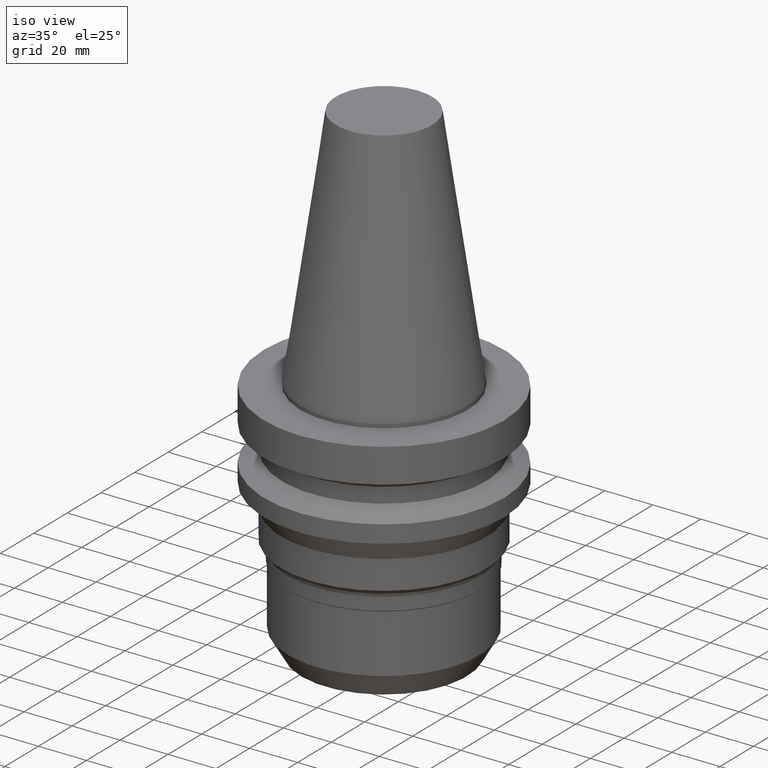
[diagram: clean part render]
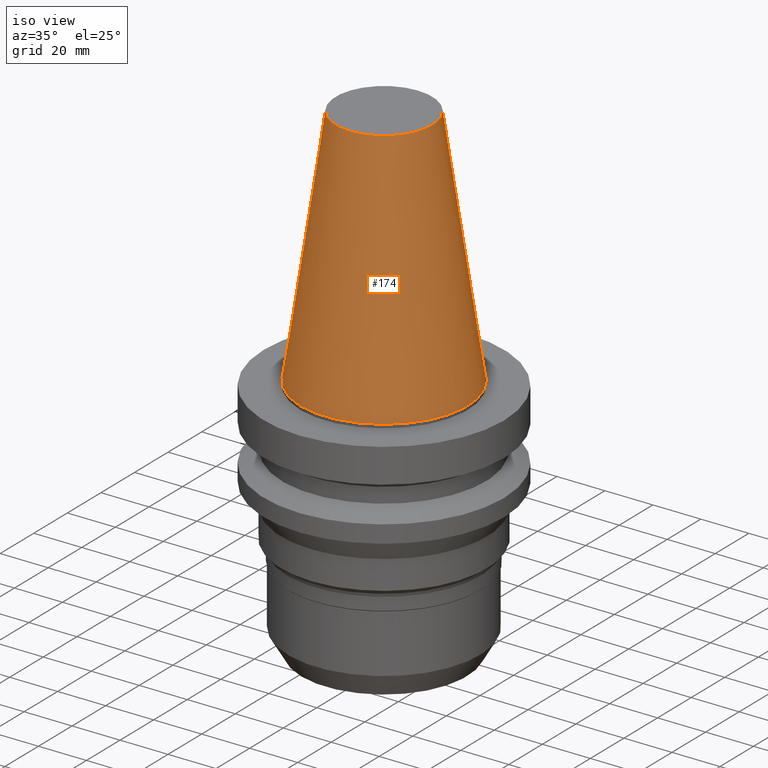
[diagram: same view with one face highlighted and labeled with its STEP entity id]
A machine part, iso view. The second image highlights one B-rep face of the part: STEP entity #174.
In plain terms, the highlighted conical surface has half-angle 8.297 deg.
Its self-contained STEP definition (entity closure, byte-faithful):
#95=EDGE_CURVE('Unnamed[1]',#235,#235,#236,.T.);
#151=EDGE_CURVE('Unnamed[1]',#324,#324,#325,.T.);
#174=ADVANCED_FACE('Unnamed[1]',(#360,#361),#362,.T.);
#235=VERTEX_POINT('',#425);
#236=CIRCLE('',#426,20.0791666651884);
#324=VERTEX_POINT('',#537);
#325=CIRCLE('',#538,34.925);
#360=FACE_BOUND('',#582,.T.);
#361=FACE_BOUND('',#583,.T.);
#362=CONICAL_SURFACE('',#584,27.5020833325942,0.144812498253157);
#425=CARTESIAN_POINT('',(-6.23345220766003E-015,20.0791666651884,101.8));
#426=AXIS2_PLACEMENT_3D('',#636,#637,#638);
#537=CARTESIAN_POINT('',(-4.30483861169435E-031,34.925,4.27707894602213E-015));
#538=AXIS2_PLACEMENT_3D('',#735,#736,#737);
#582=EDGE_LOOP('',(#775));
#583=EDGE_LOOP('',(#776));
#584=AXIS2_PLACEMENT_3D('',#777,#778,#779);
#636=CARTESIAN_POINT('',(-6.23345220766003E-015,-1.24669044153201E-014,101.8));
#637=DIRECTION('',(6.12323399573677E-017,1.22464679914713E-016,-1.0));
#638=DIRECTION('',(-1.23259516440767E-032,1.0,1.22464679914713E-016));
#735=CARTESIAN_POINT('',(0.0,0.0,0.0));
#736=DIRECTION('',(6.12323399573677E-017,1.22464679914705E-016,-1.0));
#737=DIRECTION('',(-1.23259516440793E-032,1.0,1.22464679914705E-016));
#775=ORIENTED_EDGE('',*,*,#151,.F.);
#776=ORIENTED_EDGE('',*,*,#95,.T.);
#777=CARTESIAN_POINT('',(-3.11672610383001E-015,-6.23345220766003E-015,50.9));
#778=DIRECTION('',(6.12323399573677E-017,1.22464679914737E-016,-1.0));
#779=DIRECTION('',(-1.23259516440767E-032,1.0,1.22464679914737E-016));